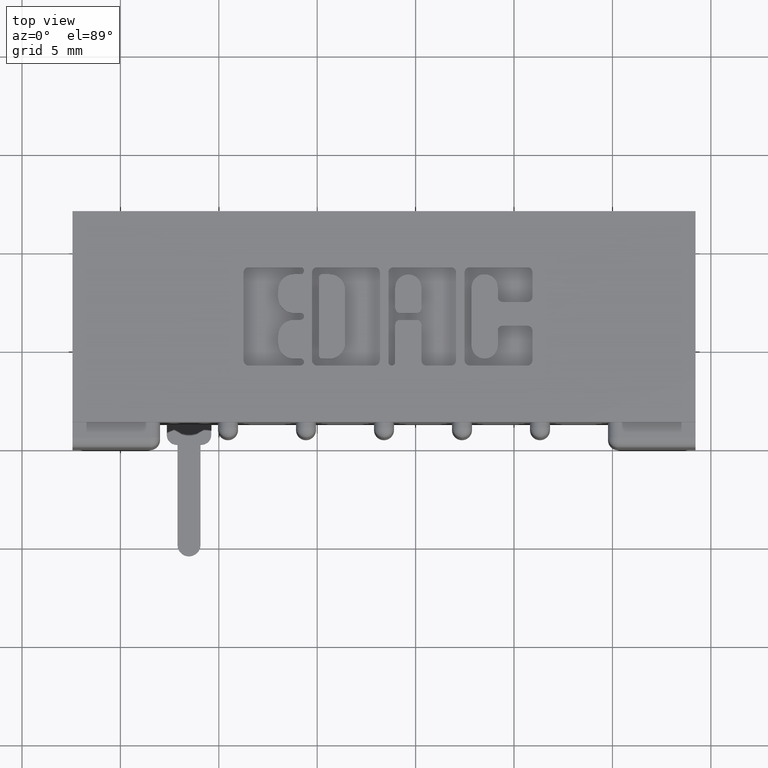
[diagram: clean part render]
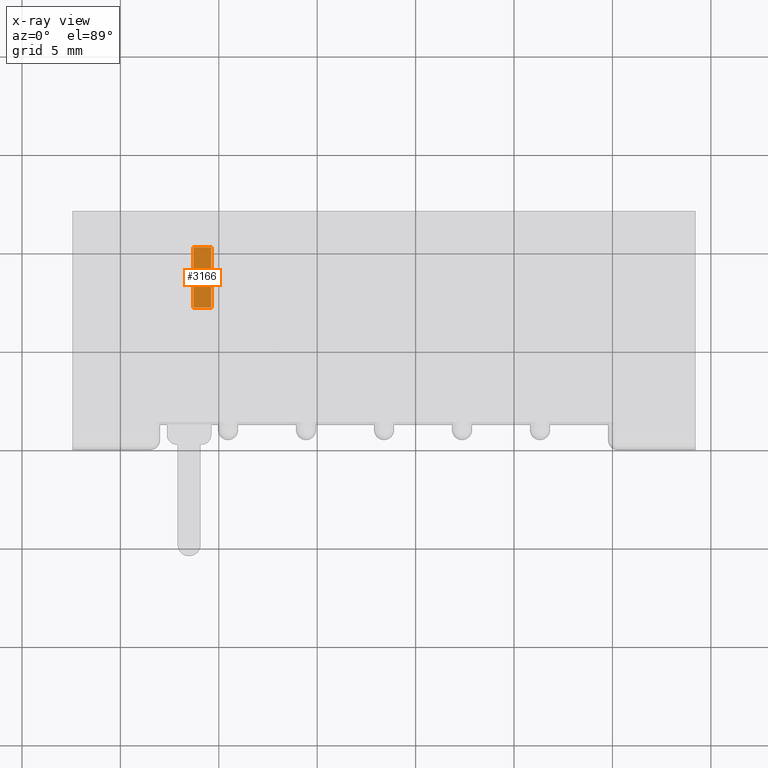
[diagram: x-ray — body ghosted, one internal face saturated and labeled with its STEP entity id]
A machine part, top view, then the same camera in x-ray: the body is ghosted and one INTERNAL B-rep face — a face not visible from any outside direction — is saturated and labeled: STEP entity #3166.
In plain terms, the highlighted planar face has unit normal (-0, 0.334, 0.9426).
Its self-contained STEP definition (entity closure, byte-faithful):
#66 = LINE ( 'NONE', #6460, #71 ) ;
#71 = VECTOR ( 'NONE', #6353, 39.37007874015748900 ) ;
#182 = EDGE_CURVE ( 'NONE', #4194, #5669, #525, .T. ) ;
#468 = VECTOR ( 'NONE', #4009, 39.37007874015748900 ) ;
#488 = VECTOR ( 'NONE', #6876, 39.37007874015748100 ) ;
#525 = LINE ( 'NONE', #2275, #488 ) ;
#938 = EDGE_CURVE ( 'NONE', #4602, #4879, #5097, .T. ) ;
#959 = EDGE_CURVE ( 'NONE', #4602, #4194, #1580, .T. ) ;
#975 = EDGE_CURVE ( 'NONE', #4879, #5669, #66, .T. ) ;
#1295 = CARTESIAN_POINT ( 'NONE',  ( 0.07930047941785115000, 0.1676992841667557200, -0.04449999999999999800 ) ) ;
#1580 = LINE ( 'NONE', #5260, #468 ) ;
#1614 = DIRECTION ( 'NONE',  ( 0.9425633918691732600, 0.3340273226969304200, -0.0000000000000000000 ) ) ;
#1680 = DIRECTION ( 'NONE',  ( -0.3340273226969304200, 0.9425633918691732600, 0.0000000000000000000 ) ) ;
#1698 = PLANE ( 'NONE',  #7813 ) ;
#1706 = CARTESIAN_POINT ( 'NONE',  ( 0.03631076070243008400, 0.2890083278723631400, 0.04449999999999999800 ) ) ;
#2275 = CARTESIAN_POINT ( 'NONE',  ( 0.07930047941785115000, 0.1676992841667557200, 0.04449999999999999800 ) ) ;
#2938 = DIRECTION ( 'NONE',  ( -0.0000000000000000000, -0.0000000000000000000, -1.000000000000000000 ) ) ;
#3166 = ADVANCED_FACE ( 'NONE', ( #6143 ), #1698, .F. ) ;
#3533 = VECTOR ( 'NONE', #2938, 39.37007874015748100 ) ;
#4009 = DIRECTION ( 'NONE',  ( 0.3340273226969304200, -0.9425633918691732600, 0.0000000000000000000 ) ) ;
#4194 = VERTEX_POINT ( 'NONE', #7470 ) ;
#4602 = VERTEX_POINT ( 'NONE', #6216 ) ;
#4702 = CARTESIAN_POINT ( 'NONE',  ( 0.03631076070243008400, 0.2890083278723631400, 0.04449999999999999800 ) ) ;
#4879 = VERTEX_POINT ( 'NONE', #6116 ) ;
#4901 = ORIENTED_EDGE ( 'NONE', *, *, #959, .F. ) ;
#5097 = LINE ( 'NONE', #4702, #3533 ) ;
#5260 = CARTESIAN_POINT ( 'NONE',  ( 0.1232513533783144200, 0.04367803793662070100, -0.008500000000000000600 ) ) ;
#5669 = VERTEX_POINT ( 'NONE', #1295 ) ;
#6116 = CARTESIAN_POINT ( 'NONE',  ( 0.03631076070243008400, 0.2890083278723631400, -0.04449999999999999800 ) ) ;
#6143 = FACE_OUTER_BOUND ( 'NONE', #7197, .T. ) ;
#6216 = CARTESIAN_POINT ( 'NONE',  ( 0.03631076070243008400, 0.2890083278723630800, -0.008500000000000000600 ) ) ;
#6353 = DIRECTION ( 'NONE',  ( 0.3340273226969304200, -0.9425633918691732600, 0.0000000000000000000 ) ) ;
#6374 = ORIENTED_EDGE ( 'NONE', *, *, #938, .T. ) ;
#6460 = CARTESIAN_POINT ( 'NONE',  ( 0.03631076070243008400, 0.2890083278723631400, -0.04449999999999999800 ) ) ;
#6876 = DIRECTION ( 'NONE',  ( -0.0000000000000000000, -0.0000000000000000000, -1.000000000000000000 ) ) ;
#6917 = ORIENTED_EDGE ( 'NONE', *, *, #182, .F. ) ;
#7197 = EDGE_LOOP ( 'NONE', ( #4901, #6374, #7856, #6917 ) ) ;
#7470 = CARTESIAN_POINT ( 'NONE',  ( 0.07930047941785113600, 0.1676992841667557200, -0.008500000000000000600 ) ) ;
#7813 = AXIS2_PLACEMENT_3D ( 'NONE', #1706, #1614, #1680 ) ;
#7856 = ORIENTED_EDGE ( 'NONE', *, *, #975, .T. ) ;